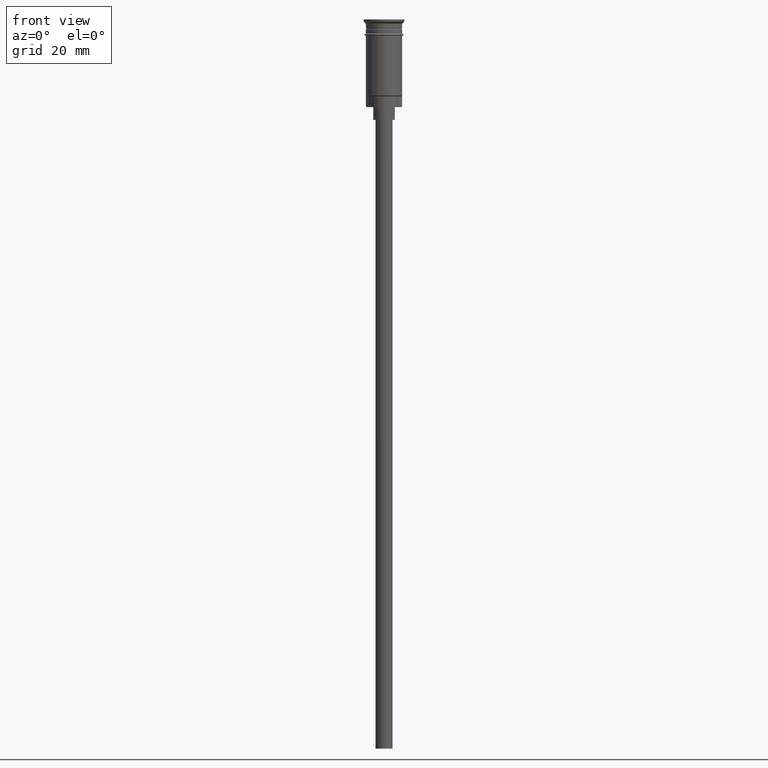
[diagram: clean part render]
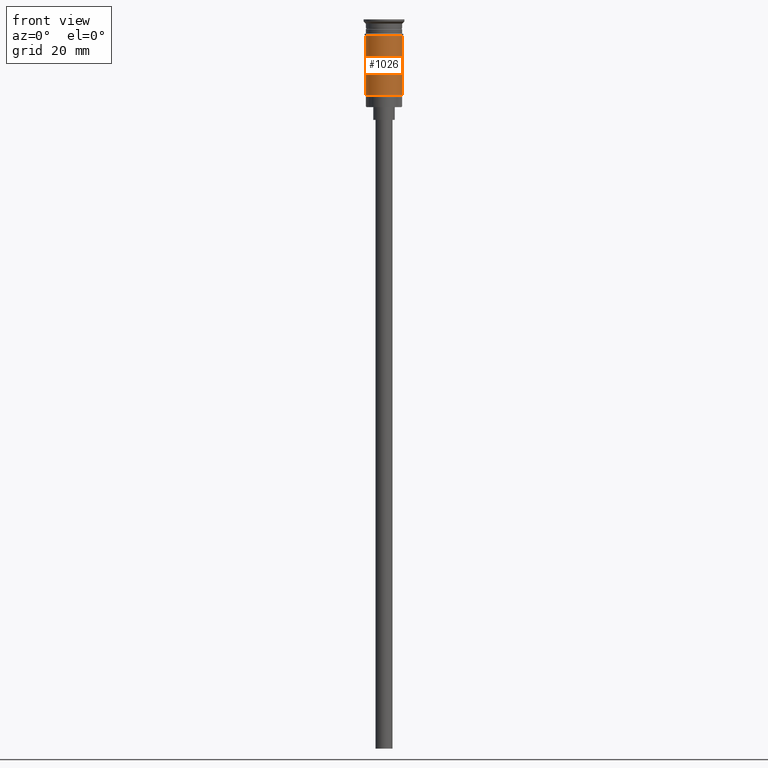
[diagram: same view with one face highlighted and labeled with its STEP entity id]
A machine part, front view. The second image highlights one B-rep face of the part: STEP entity #1026.
In plain terms, the highlighted cylindrical surface (edge-blend (fillet) strip) has radius 4.25 mm, axis along (-0, -0, 1).
Its self-contained STEP definition (entity closure, byte-faithful):
#95 = DIRECTION ( 'NONE',  ( 1.000000000000000000, 0.000000000000000000, 0.000000000000000000 ) ) ;
#144 = DIRECTION ( 'NONE',  ( 1.000000000000000000, 0.000000000000000000, 0.000000000000000000 ) ) ;
#164 = EDGE_CURVE ( 'NONE', #644, #625, #759, .T. ) ;
#239 = ORIENTED_EDGE ( 'NONE', *, *, #515, .F. ) ;
#286 = EDGE_CURVE ( 'NONE', #720, #1189, #708, .T. ) ;
#287 = FACE_OUTER_BOUND ( 'NONE', #656, .T. ) ;
#289 = CARTESIAN_POINT ( 'NONE',  ( -4.249999999999994671, 0.000000000000000000, -17.80000000000000071 ) ) ;
#314 = DIRECTION ( 'NONE',  ( -1.000000000000000000, 0.000000000000000000, 0.000000000000000000 ) ) ;
#357 = ORIENTED_EDGE ( 'NONE', *, *, #421, .T. ) ;
#364 = CARTESIAN_POINT ( 'NONE',  ( 4.249999999999999112, 0.000000000000000000, -3.799999999999998934 ) ) ;
#421 = EDGE_CURVE ( 'NONE', #625, #1189, #1356, .T. ) ;
#515 = EDGE_CURVE ( 'NONE', #644, #720, #1008, .T. ) ;
#536 = CYLINDRICAL_SURFACE ( 'NONE', #1400, 4.249999999999996447 ) ;
#625 = VERTEX_POINT ( 'NONE', #789 ) ;
#628 = DIRECTION ( 'NONE',  ( -0.000000000000000000, -0.000000000000000000, 1.000000000000000000 ) ) ;
#644 = VERTEX_POINT ( 'NONE', #289 ) ;
#656 = EDGE_LOOP ( 'NONE', ( #239, #1441, #357, #975 ) ) ;
#708 = CIRCLE ( 'NONE', #1272, 4.249999999999999112 ) ;
#720 = VERTEX_POINT ( 'NONE', #1148 ) ;
#759 = CIRCLE ( 'NONE', #1085, 4.249999999999996447 ) ;
#789 = CARTESIAN_POINT ( 'NONE',  ( 4.249999999999996447, 5.204748896376247741E-16, -17.80000000000000071 ) ) ;
#835 = VECTOR ( 'NONE', #628, 1000.000000000000000 ) ;
#837 = VECTOR ( 'NONE', #890, 1000.000000000000000 ) ;
#890 = DIRECTION ( 'NONE',  ( -0.000000000000000000, -0.000000000000000000, 1.000000000000000000 ) ) ;
#941 = CARTESIAN_POINT ( 'NONE',  ( 0.000000000000000000, 0.000000000000000000, 0.000000000000000000 ) ) ;
#975 = ORIENTED_EDGE ( 'NONE', *, *, #286, .F. ) ;
#993 = CARTESIAN_POINT ( 'NONE',  ( -4.249999999999996447, 5.204748896376247741E-16, 0.000000000000000000 ) ) ;
#1008 = LINE ( 'NONE', #993, #837 ) ;
#1020 = CARTESIAN_POINT ( 'NONE',  ( 0.000000000000000000, 0.000000000000000000, -17.80000000000000071 ) ) ;
#1026 = ADVANCED_FACE ( 'NONE', ( #287 ), #536, .T. ) ;
#1077 = CARTESIAN_POINT ( 'NONE',  ( 0.000000000000000000, 0.000000000000000000, -3.799999999999998934 ) ) ;
#1085 = AXIS2_PLACEMENT_3D ( 'NONE', #1020, #1387, #314 ) ;
#1148 = CARTESIAN_POINT ( 'NONE',  ( -4.249999999999999112, 5.204748896376250699E-16, -3.799999999999998934 ) ) ;
#1189 = VERTEX_POINT ( 'NONE', #364 ) ;
#1202 = DIRECTION ( 'NONE',  ( -0.000000000000000000, -0.000000000000000000, 1.000000000000000000 ) ) ;
#1272 = AXIS2_PLACEMENT_3D ( 'NONE', #1077, #1202, #95 ) ;
#1356 = LINE ( 'NONE', #1501, #835 ) ;
#1387 = DIRECTION ( 'NONE',  ( -0.000000000000000000, -0.000000000000000000, 1.000000000000000000 ) ) ;
#1400 = AXIS2_PLACEMENT_3D ( 'NONE', #941, #1515, #144 ) ;
#1441 = ORIENTED_EDGE ( 'NONE', *, *, #164, .T. ) ;
#1501 = CARTESIAN_POINT ( 'NONE',  ( 4.249999999999996447, 0.000000000000000000, 0.000000000000000000 ) ) ;
#1515 = DIRECTION ( 'NONE',  ( -0.000000000000000000, -0.000000000000000000, 1.000000000000000000 ) ) ;